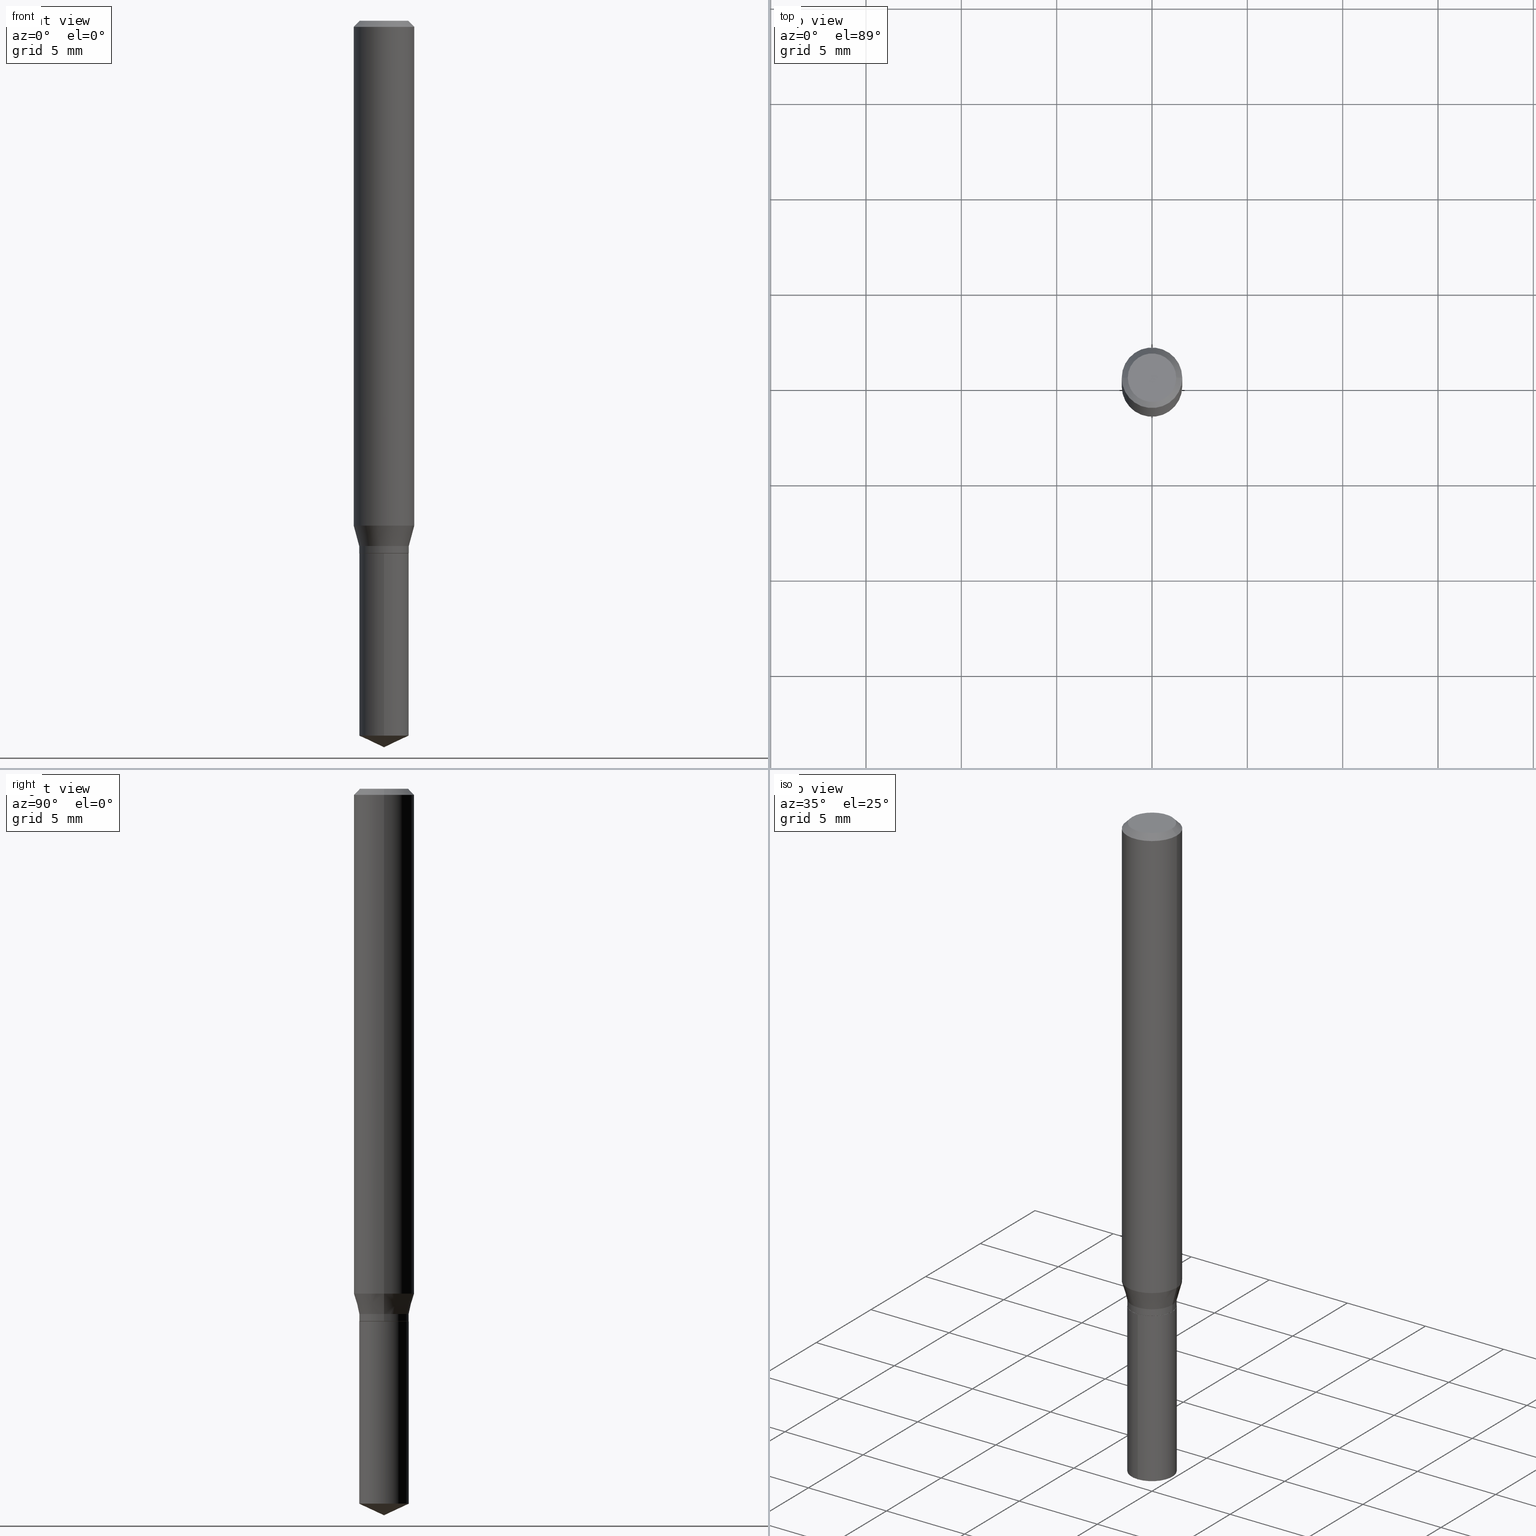
[diagram: canonical four-view strip — front | top / right | iso, engineering-drawing reading convention]
A machine part, canonical four-view strip (front | top / right | iso — engineering-drawing reading convention). The complete STEP part file that produces these views, byte-faithful:
ISO-10303-21;
HEADER;
FILE_DESCRIPTION (( 'STEP AP203' ),
    '1' );
FILE_NAME ('07211.STEP',
    '2024-04-23T20:01:26',
    ( '' ),
    ( '' ),
    'SwSTEP 2.0',
    'SolidWorks 2023',
    '' );
FILE_SCHEMA (( 'CONFIG_CONTROL_DESIGN' ));
ENDSEC;

DATA;
#1 = ORGANIZATION ( 'UNSPECIFIED', 'UNSPECIFIED', '' ) ;
#2 = MANIFOLD_SOLID_BREP ( 'Body-Move/Copy2[2]', #442 ) ;
#3 = DIRECTION ( 'NONE',  ( -2.445468806185136597E-29, 3.491481338843145583E-15, 1.000000000000000000 ) ) ;
#4 = EDGE_CURVE ( 'NONE', #379, #195, #163, .T. ) ;
#5 = VERTEX_POINT ( 'NONE', #465 ) ;
#6 = FACE_OUTER_BOUND ( 'NONE', #115, .T. ) ;
#7 =( CONVERSION_BASED_UNIT ( 'INCH', #227 ) LENGTH_UNIT ( ) NAMED_UNIT ( #392 ) );
#8 = ORIENTED_EDGE ( 'NONE', *, *, #76, .T. ) ;
#9 = CIRCLE ( 'NONE', #384, 0.05070000000000000201 ) ;
#10 = APPLICATION_CONTEXT ( 'configuration controlled 3d designs of mechanical parts and assemblies' ) ;
#11 = EDGE_LOOP ( 'NONE', ( #189, #229, #343, #266 ) ) ;
#12 = ORIENTED_EDGE ( 'NONE', *, *, #327, .F. ) ;
#13 = ORIENTED_EDGE ( 'NONE', *, *, #365, .T. ) ;
#14 = AXIS2_PLACEMENT_3D ( 'NONE', #24, #397, #208 ) ;
#15 = VECTOR ( 'NONE', #417, 39.37007874015748854 ) ;
#16 = ORIENTED_EDGE ( 'NONE', *, *, #184, .F. ) ;
#17 = CYLINDRICAL_SURFACE ( 'NONE', #215, 0.06250000000000006939 ) ;
#18 = DIRECTION ( 'NONE',  ( -2.445468806185136877E-29, 3.491481338843145188E-15, 1.000000000000000000 ) ) ;
#19 = CARTESIAN_POINT ( 'NONE',  ( 0.000000000000000000, 0.000000000000000000, 0.000000000000000000 ) ) ;
#20 = CARTESIAN_POINT ( 'NONE',  ( 0.06250000000000006939, -4.364351673553921624E-16, 3.047610484872463374E-30 ) ) ;
#21 = CARTESIAN_POINT ( 'NONE',  ( 0.000000000000000000, 0.000000000000000000, 0.000000000000000000 ) ) ;
#22 = EDGE_CURVE ( 'NONE', #339, #301, #427, .T. ) ;
#23 = DATE_AND_TIME ( #405, #474 ) ;
#24 = CARTESIAN_POINT ( 'NONE',  ( 2.690015686803650369E-29, -3.840629472727460101E-15, -1.100000000000000089 ) ) ;
#25 = CIRCLE ( 'NONE', #289, 0.04999999999999999584 ) ;
#26 = CIRCLE ( 'NONE', #368, 0.06250000000000000000 ) ;
#27 = CARTESIAN_POINT ( 'NONE',  ( -0.05070000000000000201, -3.477735078522978338E-15, -1.100000000000000089 ) ) ;
#28 = PERSON_AND_ORGANIZATION ( #400, #1 ) ;
#29 = DIRECTION ( 'NONE',  ( -6.982962677686266711E-15, -1.000000000000000000, 3.520397390770453475E-15 ) ) ;
#30 =( GEOMETRIC_REPRESENTATION_CONTEXT ( 3 ) GLOBAL_UNCERTAINTY_ASSIGNED_CONTEXT ( ( #188 ) ) GLOBAL_UNIT_ASSIGNED_CONTEXT ( ( #7, #453, #436 ) ) REPRESENTATION_CONTEXT ( 'NONE', 'WORKASPACE' ) );
#31 = ORIENTED_EDGE ( 'NONE', *, *, #327, .T. ) ;
#32 = SHAPE_DEFINITION_REPRESENTATION ( #157, #459 ) ;
#33 = DIRECTION ( 'NONE',  ( -2.445399690415121530E-29, 3.491580316559632610E-15, 1.000000000000000000 ) ) ;
#34 = CC_DESIGN_PERSON_AND_ORGANIZATION_ASSIGNMENT ( #471, #36, ( #255 ) ) ;
#35 = DIRECTION ( 'NONE',  ( -2.445468806185136597E-29, 3.491481338843145583E-15, 1.000000000000000000 ) ) ;
#36 = PERSON_AND_ORGANIZATION_ROLE ( 'creator' ) ;
#37 = DIRECTION ( 'NONE',  ( -2.445468806185136597E-29, 3.491481338843145583E-15, 1.000000000000000000 ) ) ;
#38 = AXIS2_PLACEMENT_3D ( 'NONE', #107, #338, #380 ) ;
#39 = DIRECTION ( 'NONE',  ( -2.445468806185136597E-29, 3.491481338843145583E-15, 1.000000000000000000 ) ) ;
#40 = DIRECTION ( 'NONE',  ( -2.445468806185136597E-29, 3.491481338843145583E-15, 1.000000000000000000 ) ) ;
#41 = DIRECTION ( 'NONE',  ( -2.445468806185136597E-29, 3.491481338843145583E-15, 1.000000000000000000 ) ) ;
#42 = CARTESIAN_POINT ( 'NONE',  ( 2.688792952400557567E-29, -3.838883732058038598E-15, -1.099499999999999922 ) ) ;
#43 = AXIS2_PLACEMENT_3D ( 'NONE', #435, #243, #401 ) ;
#44 = FACE_OUTER_BOUND ( 'NONE', #90, .T. ) ;
#45 = EDGE_CURVE ( 'NONE', #5, #158, #127, .T. ) ;
#46 = CARTESIAN_POINT ( 'NONE',  ( 0.000000000000000000, 0.000000000000000000, 0.000000000000000000 ) ) ;
#47 = PLANE ( 'NONE',  #179 ) ;
#48 = APPROVAL ( #466, 'UNSPECIFIED' ) ;
#49 = ORIENTED_EDGE ( 'NONE', *, *, #413, .T. ) ;
#50 = FACE_OUTER_BOUND ( 'NONE', #274, .T. ) ;
#51 = ORIENTED_EDGE ( 'NONE', *, *, #307, .T. ) ;
#52 = VECTOR ( 'NONE', #133, 39.37007874015748854 ) ;
#53 = ORIENTED_EDGE ( 'NONE', *, *, #85, .T. ) ;
#54 = CC_DESIGN_APPROVAL ( #48, ( #255 ) ) ;
#55 = ORIENTED_EDGE ( 'NONE', *, *, #187, .T. ) ;
#56 = DIRECTION ( 'NONE',  ( -2.445399690415121810E-29, 3.491580316559632610E-15, 1.000000000000000000 ) ) ;
#57 = DIRECTION ( 'NONE',  ( -2.445468806185136597E-29, 3.491481338843145583E-15, 1.000000000000000000 ) ) ;
#58 = VECTOR ( 'NONE', #71, 39.37007874015748143 ) ;
#59 = VERTEX_POINT ( 'NONE', #246 ) ;
#60 = APPROVAL_DATE_TIME ( #70, #342 ) ;
#61 = FACE_OUTER_BOUND ( 'NONE', #389, .T. ) ;
#62 = CARTESIAN_POINT ( 'NONE',  ( 2.549224730875411366E-29, -3.639617301131549436E-15, -1.042427825874471470 ) ) ;
#63 = SECURITY_CLASSIFICATION_LEVEL ( 'unclassified' ) ;
#64 = CARTESIAN_POINT ( 'NONE',  ( -9.260740279983036507E-28, 1.322265303911854087E-13, 37.87007874015748143 ) ) ;
#65 = DIRECTION ( 'NONE',  ( -2.445468806185136877E-29, 3.491481338843145188E-15, 1.000000000000000000 ) ) ;
#66 = DIRECTION ( 'NONE',  ( 1.000000000000000000, 0.000000000000000000, 0.000000000000000000 ) ) ;
#67 = CARTESIAN_POINT ( 'NONE',  ( 3.893286209682126177E-47, -5.558580879666067980E-33, -1.592040838891559689E-18 ) ) ;
#68 = CIRCLE ( 'NONE', #203, 0.06250000000000000000 ) ;
#69 = CARTESIAN_POINT ( 'NONE',  ( -3.575276890975008567E-16, -0.05120000000000517887, -1.476125047902464127 ) ) ;
#70 = DATE_AND_TIME ( #281, #319 ) ;
#71 = DIRECTION ( 'NONE',  ( -0.7071067811865451302, 2.468850131082231817E-15, -0.7071067811865499042 ) ) ;
#72 = CARTESIAN_POINT ( 'NONE',  ( 3.893286209682126177E-47, -5.558580879666067980E-33, -1.592040838891559689E-18 ) ) ;
#73 = COORDINATED_UNIVERSAL_TIME_OFFSET ( 5, 0, .BEHIND. ) ;
#74 = FACE_OUTER_BOUND ( 'NONE', #265, .T. ) ;
#75 = CARTESIAN_POINT ( 'NONE',  ( 3.668252923656895710E-29, -5.237152723863177100E-15, -1.500000000000000222 ) ) ;
#76 = EDGE_CURVE ( 'NONE', #122, #457, #467, .T. ) ;
#77 = CYLINDRICAL_SURFACE ( 'NONE', #462, 0.05120000000000000939 ) ;
#78 = LINE ( 'NONE', #75, #126 ) ;
#79 = DIRECTION ( 'NONE',  ( 1.000000000000000000, -6.982962677686263555E-15, 0.000000000000000000 ) ) ;
#80 = AXIS2_PLACEMENT_3D ( 'NONE', #399, #441, #139 ) ;
#81 = DIRECTION ( 'NONE',  ( 1.000000000000000000, -6.982962677686263555E-15, 0.000000000000000000 ) ) ;
#82 = EDGE_CURVE ( 'NONE', #457, #84, #450, .T. ) ;
#83 = VERTEX_POINT ( 'NONE', #27 ) ;
#84 = VERTEX_POINT ( 'NONE', #277 ) ;
#85 = EDGE_CURVE ( 'NONE', #59, #5, #284, .T. ) ;
#86 = ORIENTED_EDGE ( 'NONE', *, *, #45, .F. ) ;
#87 = ORIENTED_EDGE ( 'NONE', *, *, #288, .T. ) ;
#88 = ORIENTED_EDGE ( 'NONE', *, *, #130, .F. ) ;
#89 = AXIS2_PLACEMENT_3D ( 'NONE', #334, #120, #79 ) ;
#90 = EDGE_LOOP ( 'NONE', ( #463, #322, #426, #271 ) ) ;
#91 = PERSON_AND_ORGANIZATION ( #400, #1 ) ;
#92 = LOCAL_TIME ( 16, 1, 26.00000000000000000, #312 ) ;
#93 = DIRECTION ( 'NONE',  ( 1.000000000000000000, -6.982962677686263555E-15, 0.000000000000000000 ) ) ;
#94 = EDGE_LOOP ( 'NONE', ( #53, #112, #344, #470 ) ) ;
#95 = COORDINATED_UNIVERSAL_TIME_OFFSET ( 5, 0, .BEHIND. ) ;
#96 = CYLINDRICAL_SURFACE ( 'NONE', #213, 0.06250000000000006939 ) ;
#97 = ORIENTED_EDGE ( 'NONE', *, *, #22, .F. ) ;
#98 = CALENDAR_DATE ( 2024, 23, 4 ) ;
#99 = DIRECTION ( 'NONE',  ( 0.7071067811865451302, -7.319954787623248157E-15, -0.7071067811865499042 ) ) ;
#100 = ORIENTED_EDGE ( 'NONE', *, *, #296, .F. ) ;
#101 = FACE_OUTER_BOUND ( 'NONE', #423, .T. ) ;
#102 = CARTESIAN_POINT ( 'NONE',  ( 3.609791762501709224E-29, -5.153900286548753594E-15, -1.476125047902464349 ) ) ;
#103 = ADVANCED_FACE ( 'NONE', ( #241 ), #167, .T. ) ;
#104 = EDGE_CURVE ( 'NONE', #83, #295, #383, .T. ) ;
#105 = VECTOR ( 'NONE', #183, 39.37007874015748854 ) ;
#106 = DIRECTION ( 'NONE',  ( -2.445468806185136597E-29, 3.491481338843145583E-15, 1.000000000000000000 ) ) ;
#107 = CARTESIAN_POINT ( 'NONE',  ( 2.549224730875411366E-29, -3.639617301131549436E-15, -1.042427825874471470 ) ) ;
#108 = CC_DESIGN_APPROVAL ( #342, ( #370 ) ) ;
#109 = CARTESIAN_POINT ( 'NONE',  ( -0.05070000000000000201, -3.480384305697089145E-15, -1.100000000000000089 ) ) ;
#110 = CC_DESIGN_PERSON_AND_ORGANIZATION_ASSIGNMENT ( #28, #363, ( #218 ) ) ;
#111 = DIRECTION ( 'NONE',  ( 2.438088387897960049E-29, -3.491481338843145188E-15, -1.000000000000000000 ) ) ;
#112 = ORIENTED_EDGE ( 'NONE', *, *, #45, .T. ) ;
#113 = DIRECTION ( 'NONE',  ( -2.445399690415121530E-29, 3.491580316559632610E-15, 1.000000000000000000 ) ) ;
#114 = ORIENTED_EDGE ( 'NONE', *, *, #156, .F. ) ;
#115 = EDGE_LOOP ( 'NONE', ( #420, #422 ) ) ;
#116 = ORIENTED_EDGE ( 'NONE', *, *, #296, .T. ) ;
#117 = AXIS2_PLACEMENT_3D ( 'NONE', #102, #354, #395 ) ;
#118 = PRODUCT ( '07211', '07211', '', ( #433 ) ) ;
#119 = ORIENTED_EDGE ( 'NONE', *, *, #473, .F. ) ;
#120 = DIRECTION ( 'NONE',  ( -2.445468806185136597E-29, 3.491481338843145583E-15, 1.000000000000000000 ) ) ;
#121 = EDGE_LOOP ( 'NONE', ( #300, #181, #49, #341 ) ) ;
#122 = VERTEX_POINT ( 'NONE', #69 ) ;
#123 = APPROVAL_DATE_TIME ( #481, #248 ) ;
#124 = VECTOR ( 'NONE', #99, 39.37007874015748143 ) ;
#125 = CARTESIAN_POINT ( 'NONE',  ( 2.690015686803650369E-29, -3.840629472727460101E-15, -1.100000000000000089 ) ) ;
#126 = VECTOR ( 'NONE', #146, 39.37007874015748854 ) ;
#127 = LINE ( 'NONE', #310, #407 ) ;
#128 = COORDINATED_UNIVERSAL_TIME_OFFSET ( 5, 0, .BEHIND. ) ;
#129 = CARTESIAN_POINT ( 'NONE',  ( 3.637978807092075016E-16, 0.05119999999999486073, -1.476125047902464571 ) ) ;
#130 = EDGE_CURVE ( 'NONE', #195, #301, #374, .T. ) ;
#131 = DIRECTION ( 'NONE',  ( -2.445468806185136877E-29, 3.491481338843145188E-15, 1.000000000000000000 ) ) ;
#132 = COORDINATED_UNIVERSAL_TIME_OFFSET ( 5, 0, .BEHIND. ) ;
#133 = DIRECTION ( 'NONE',  ( -0.2588190451025212391, 5.211531920934549464E-15, 0.9659258262890679791 ) ) ;
#134 = ORIENTED_EDGE ( 'NONE', *, *, #82, .F. ) ;
#135 = PERSON_AND_ORGANIZATION ( #400, #1 ) ;
#136 = AXIS2_PLACEMENT_3D ( 'NONE', #64, #166, #29 ) ;
#137 = FACE_OUTER_BOUND ( 'NONE', #121, .T. ) ;
#138 = EDGE_CURVE ( 'NONE', #336, #315, #483, .T. ) ;
#139 = DIRECTION ( 'NONE',  ( -6.982962677686265133E-15, -1.000000000000000000, 5.335640612625512847E-15 ) ) ;
#140 = APPROVAL_PERSON_ORGANIZATION ( #320, #48, #200 ) ;
#141 = DIRECTION ( 'NONE',  ( -2.445468806185136597E-29, 3.491481338843145583E-15, 1.000000000000000000 ) ) ;
#142 = DIRECTION ( 'NONE',  ( -6.328713451373374901E-15, -0.9063077870366492705, 0.4226182617407009956 ) ) ;
#143 = CARTESIAN_POINT ( 'NONE',  ( 2.690015686803650369E-29, -3.840629472727460101E-15, -1.100000000000000089 ) ) ;
#144 = CARTESIAN_POINT ( 'NONE',  ( 0.05120000000000000939, -4.144388349206813555E-15, -1.084600000000000231 ) ) ;
#145 = ORIENTED_EDGE ( 'NONE', *, *, #421, .F. ) ;
#146 = DIRECTION ( 'NONE',  ( 6.439704144417030353E-15, 0.9063077870366521571, 0.4226182617406946673 ) ) ;
#147 = CIRCLE ( 'NONE', #117, 0.05120000000000000939 ) ;
#148 = ORIENTED_EDGE ( 'NONE', *, *, #431, .T. ) ;
#149 = ADVANCED_FACE ( 'NONE', ( #61 ), #197, .T. ) ;
#150 = ORIENTED_EDGE ( 'NONE', *, *, #288, .F. ) ;
#151 = EDGE_CURVE ( 'NONE', #84, #457, #340, .T. ) ;
#152 = ORIENTED_EDGE ( 'NONE', *, *, #151, .F. ) ;
#153 = ADVANCED_FACE ( 'NONE', ( #74 ), #165, .T. ) ;
#154 = ORIENTED_EDGE ( 'NONE', *, *, #4, .T. ) ;
#155 = AXIS2_PLACEMENT_3D ( 'NONE', #209, #35, #404 ) ;
#156 = EDGE_CURVE ( 'NONE', #122, #231, #251, .T. ) ;
#157 = PRODUCT_DEFINITION_SHAPE ( 'NONE', 'NONE',  #218 ) ;
#158 = VERTEX_POINT ( 'NONE', #472 ) ;
#159 = DIRECTION ( 'NONE',  ( 1.000000000000000000, -6.982962677686266711E-15, 4.876176775795935793E-29 ) ) ;
#160 = CARTESIAN_POINT ( 'NONE',  ( -0.05120000000000000939, 3.637978807091713619E-16, -2.518494766210512278E-30 ) ) ;
#161 = APPLICATION_PROTOCOL_DEFINITION ( 'international standard', 'config_control_design', 1994, #306 ) ;
#162 = FACE_OUTER_BOUND ( 'NONE', #268, .T. ) ;
#163 = LINE ( 'NONE', #192, #475 ) ;
#164 = DATE_AND_TIME ( #402, #92 ) ;
#165 = CONICAL_SURFACE ( 'NONE', #14, 0.05070000000000000201, 0.7853981633974141952 ) ;
#166 = DIRECTION ( 'NONE',  ( -2.445399690415121530E-29, 3.491580316559632610E-15, 1.000000000000000000 ) ) ;
#167 = CYLINDRICAL_SURFACE ( 'NONE', #302, 0.05120000000000000939 ) ;
#168 = DIRECTION ( 'NONE',  ( -6.982962677686265133E-15, -1.000000000000000000, 2.667820306312756424E-15 ) ) ;
#169 = VERTEX_POINT ( 'NONE', #170 ) ;
#170 = CARTESIAN_POINT ( 'NONE',  ( 3.668099535622682715E-29, -5.237370474839449507E-15, -1.500000000000000222 ) ) ;
#171 = DIRECTION ( 'NONE',  ( 1.000000000000000000, -6.982962677686265922E-15, 4.875957971899673662E-29 ) ) ;
#172 = DIRECTION ( 'NONE',  ( -2.445468806185136597E-29, 3.491481338843145583E-15, 1.000000000000000000 ) ) ;
#173 = CIRCLE ( 'NONE', #193, 0.05120000000000000939 ) ;
#174 = AXIS2_PLACEMENT_3D ( 'NONE', #452, #40, #294 ) ;
#175 = FACE_OUTER_BOUND ( 'NONE', #308, .T. ) ;
#176 = CARTESIAN_POINT ( 'NONE',  ( 3.668099535622682155E-29, -5.237370474839448718E-15, -1.500000000000000222 ) ) ;
#177 = FACE_OUTER_BOUND ( 'NONE', #202, .T. ) ;
#178 = CC_DESIGN_PERSON_AND_ORGANIZATION_ASSIGNMENT ( #278, #234, ( #118 ) ) ;
#179 = AXIS2_PLACEMENT_3D ( 'NONE', #375, #449, #260 ) ;
#180 = PLANE ( 'NONE',  #460 ) ;
#181 = ORIENTED_EDGE ( 'NONE', *, *, #104, .T. ) ;
#182 = DIRECTION ( 'NONE',  ( 6.982962677686265922E-15, 1.000000000000000000, -3.491580316559632610E-15 ) ) ;
#183 = DIRECTION ( 'NONE',  ( 0.2588190451025212391, 1.565188264969622362E-15, 0.9659258262890679791 ) ) ;
#184 = EDGE_CURVE ( 'NONE', #315, #393, #430, .T. ) ;
#185 = ORIENTED_EDGE ( 'NONE', *, *, #104, .F. ) ;
#186 = ORIENTED_EDGE ( 'NONE', *, *, #4, .F. ) ;
#187 = EDGE_CURVE ( 'NONE', #301, #5, #276, .T. ) ;
#188 = UNCERTAINTY_MEASURE_WITH_UNIT (LENGTH_MEASURE( 1.000000000000000082E-05 ), #7, 'distance_accuracy_value', 'NONE');
#189 = ORIENTED_EDGE ( 'NONE', *, *, #226, .F. ) ;
#190 = ORIENTED_EDGE ( 'NONE', *, *, #335, .T. ) ;
#191 = CONICAL_SURFACE ( 'NONE', #261, 0.06250000000000000000, 0.7853981633974449483 ) ;
#192 = CARTESIAN_POINT ( 'NONE',  ( 0.05120000000000000939, -3.575276890975369471E-16, 2.496602509207519384E-30 ) ) ;
#193 = AXIS2_PLACEMENT_3D ( 'NONE', #287, #141, #410 ) ;
#194 = CIRCLE ( 'NONE', #89, 0.05120000000000000939 ) ;
#195 = VERTEX_POINT ( 'NONE', #482 ) ;
#196 = APPROVAL_DATE_TIME ( #164, #48 ) ;
#197 = CYLINDRICAL_SURFACE ( 'NONE', #223, 0.05120000000000000939 ) ;
#198 = ORIENTED_EDGE ( 'NONE', *, *, #291, .F. ) ;
#199 = ADVANCED_FACE ( 'NONE', ( #137 ), #314, .T. ) ;
#200 = APPROVAL_ROLE ( '' ) ;
#201 = DIRECTION ( 'NONE',  ( -1.000000000000000000, 6.982962677686266711E-15, 0.000000000000000000 ) ) ;
#202 = EDGE_LOOP ( 'NONE', ( #270, #454 ) ) ;
#203 = AXIS2_PLACEMENT_3D ( 'NONE', #286, #37, #211 ) ;
#204 = DIRECTION ( 'NONE',  ( -1.000000000000000000, 6.982962677686266711E-15, 0.000000000000000000 ) ) ;
#205 = ORIENTED_EDGE ( 'NONE', *, *, #236, .F. ) ;
#206 = PERSON_AND_ORGANIZATION ( #400, #1 ) ;
#207 = APPROVAL_PERSON_ORGANIZATION ( #206, #342, #394 ) ;
#208 = DIRECTION ( 'NONE',  ( 1.000000000000000000, -6.982962677686263555E-15, 0.000000000000000000 ) ) ;
#209 = CARTESIAN_POINT ( 'NONE',  ( 2.652355467188399594E-29, -3.786860660109276214E-15, -1.084600000000000231 ) ) ;
#210 = DATE_TIME_ROLE ( 'creation_date' ) ;
#211 = DIRECTION ( 'NONE',  ( 1.000000000000000000, -6.982962677686266711E-15, 0.000000000000000000 ) ) ;
#212 = PRODUCT_RELATED_PRODUCT_CATEGORY ( 'detail', '', ( #118 ) ) ;
#213 = AXIS2_PLACEMENT_3D ( 'NONE', #313, #469, #242 ) ;
#214 = LINE ( 'NONE', #220, #15 ) ;
#215 = AXIS2_PLACEMENT_3D ( 'NONE', #46, #57, #159 ) ;
#216 = CARTESIAN_POINT ( 'NONE',  ( 2.690015686803650369E-29, -3.840629472727460101E-15, -1.100000000000000089 ) ) ;
#217 = LOCAL_TIME ( 16, 1, 26.00000000000000000, #128 ) ;
#218 = PRODUCT_DEFINITION ( 'UNKNOWN', '', #255, #458 ) ;
#219 = CARTESIAN_POINT ( 'NONE',  ( -0.04999999999999999584, 3.709698922520826725E-16, -1.592040838894077649E-18 ) ) ;
#220 = CARTESIAN_POINT ( 'NONE',  ( 0.05070000000000000201, -4.194665680486153647E-15, -1.100000000000000089 ) ) ;
#221 = CARTESIAN_POINT ( 'NONE',  ( 1.946643104841063088E-47, -2.779290439833033990E-33, -7.960204194457798443E-19 ) ) ;
#222 = AXIS2_PLACEMENT_3D ( 'NONE', #237, #347, #396 ) ;
#223 = AXIS2_PLACEMENT_3D ( 'NONE', #125, #317, #321 ) ;
#224 = AXIS2_PLACEMENT_3D ( 'NONE', #42, #3, #258 ) ;
#225 = CARTESIAN_POINT ( 'NONE',  ( 0.000000000000000000, 0.000000000000000000, 0.000000000000000000 ) ) ;
#226 = EDGE_CURVE ( 'NONE', #315, #336, #25, .T. ) ;
#227 = LENGTH_MEASURE_WITH_UNIT ( LENGTH_MEASURE( 0.02539999999999999897 ), #262 );
#228 = EDGE_LOOP ( 'NONE', ( #31, #456, #88, #186 ) ) ;
#229 = ORIENTED_EDGE ( 'NONE', *, *, #184, .T. ) ;
#230 = AXIS2_PLACEMENT_3D ( 'NONE', #282, #285, #93 ) ;
#231 = VERTEX_POINT ( 'NONE', #129 ) ;
#232 = CONICAL_SURFACE ( 'NONE', #415, 0.06250000000000000000, 0.7853981633974449483 ) ;
#233 = ORIENTED_EDGE ( 'NONE', *, *, #461, .T. ) ;
#234 = PERSON_AND_ORGANIZATION_ROLE ( 'design_owner' ) ;
#235 = AXIS2_PLACEMENT_3D ( 'NONE', #331, #487, #372 ) ;
#236 = EDGE_CURVE ( 'NONE', #158, #393, #68, .T. ) ;
#237 = CARTESIAN_POINT ( 'NONE',  ( 2.690015686803650369E-29, -3.840629472727460101E-15, -1.100000000000000089 ) ) ;
#238 = CC_DESIGN_APPROVAL ( #248, ( #218 ) ) ;
#239 = FACE_OUTER_BOUND ( 'NONE', #303, .T. ) ;
#240 = ADVANCED_FACE ( 'NONE', ( #239 ), #488, .T. ) ;
#241 = FACE_OUTER_BOUND ( 'NONE', #228, .T. ) ;
#242 = DIRECTION ( 'NONE',  ( 1.000000000000000000, -6.982962677686266711E-15, 4.876176775795935793E-29 ) ) ;
#243 = DIRECTION ( 'NONE',  ( -2.445468806185136597E-29, 3.491481338843145583E-15, 1.000000000000000000 ) ) ;
#244 = ADVANCED_FACE ( 'NONE', ( #352 ), #232, .T. ) ;
#245 = DIRECTION ( 'NONE',  ( 2.445468806185136597E-29, -3.491481338843145583E-15, -1.000000000000000000 ) ) ;
#246 = CARTESIAN_POINT ( 'NONE',  ( 0.06250000000000012490, -4.076052468486941894E-15, -1.042427825874471470 ) ) ;
#247 = APPROVAL_STATUS ( 'not_yet_approved' ) ;
#248 = APPROVAL ( #247, 'UNSPECIFIED' ) ;
#249 = CARTESIAN_POINT ( 'NONE',  ( 3.056836007731442729E-31, -4.364351673553962300E-17, -0.01250000000000008916 ) ) ;
#250 = FACE_OUTER_BOUND ( 'NONE', #359, .T. ) ;
#251 = CIRCLE ( 'NONE', #80, 0.05120000000000000939 ) ;
#252 = LINE ( 'NONE', #176, #325 ) ;
#253 = CC_DESIGN_PERSON_AND_ORGANIZATION_ASSIGNMENT ( #91, #309, ( #255 ) ) ;
#254 = CARTESIAN_POINT ( 'NONE',  ( 0.05120000000000000939, -4.196411421155575151E-15, -1.099499999999999922 ) ) ;
#255 = PRODUCT_DEFINITION_FORMATION_WITH_SPECIFIED_SOURCE ( 'ANY', '', #118, .NOT_KNOWN. ) ;
#256 = CYLINDRICAL_SURFACE ( 'NONE', #304, 0.05120000000000000939 ) ;
#257 = CARTESIAN_POINT ( 'NONE',  ( 0.04999999999999999584, -4.077247707424184705E-16, -1.592040838888913461E-18 ) ) ;
#258 = DIRECTION ( 'NONE',  ( 1.000000000000000000, -6.982962677686263555E-15, 0.000000000000000000 ) ) ;
#259 = EDGE_CURVE ( 'NONE', #336, #158, #364, .T. ) ;
#260 = DIRECTION ( 'NONE',  ( 1.000000000000000000, -6.982962677686265922E-15, 4.876176775795935793E-29 ) ) ;
#261 = AXIS2_PLACEMENT_3D ( 'NONE', #249, #279, #201 ) ;
#262 =( LENGTH_UNIT ( ) NAMED_UNIT ( * ) SI_UNIT ( $, .METRE. ) );
#263 = VECTOR ( 'NONE', #367, 39.37007874015748854 ) ;
#264 = ORIENTED_EDGE ( 'NONE', *, *, #156, .T. ) ;
#265 = EDGE_LOOP ( 'NONE', ( #51, #190, #12, #418 ) ) ;
#266 = ORIENTED_EDGE ( 'NONE', *, *, #259, .F. ) ;
#267 = ADVANCED_FACE ( 'NONE', ( #101 ), #191, .T. ) ;
#268 = EDGE_LOOP ( 'NONE', ( #86, #148, #398, #205 ) ) ;
#269 = AXIS2_PLACEMENT_3D ( 'NONE', #486, #39, #81 ) ;
#270 = ORIENTED_EDGE ( 'NONE', *, *, #82, .T. ) ;
#271 = ORIENTED_EDGE ( 'NONE', *, *, #431, .F. ) ;
#272 = EDGE_CURVE ( 'NONE', #59, #393, #406, .T. ) ;
#273 = DATE_TIME_ROLE ( 'classification_date' ) ;
#274 = EDGE_LOOP ( 'NONE', ( #264, #87, #134, #350 ) ) ;
#275 = DATE_AND_TIME ( #98, #217 ) ;
#276 = LINE ( 'NONE', #324, #52 ) ;
#277 = CARTESIAN_POINT ( 'NONE',  ( 3.637978807092074523E-16, 0.05119999999999616525, -1.100000000000000089 ) ) ;
#278 = PERSON_AND_ORGANIZATION ( #400, #1 ) ;
#279 = DIRECTION ( 'NONE',  ( 2.445468806185136597E-29, -3.491481338843145583E-15, -1.000000000000000000 ) ) ;
#280 = DIRECTION ( 'NONE',  ( 1.000000000000000000, -6.982962677686264344E-15, 0.000000000000000000 ) ) ;
#281 = CALENDAR_DATE ( 2024, 23, 4 ) ;
#282 = CARTESIAN_POINT ( 'NONE',  ( 2.690015686803650369E-29, -3.840629472727460101E-15, -1.100000000000000089 ) ) ;
#283 = ORIENTED_EDGE ( 'NONE', *, *, #291, .T. ) ;
#284 = CIRCLE ( 'NONE', #445, 0.06250000000000012490 ) ;
#285 = DIRECTION ( 'NONE',  ( -2.445468806185136597E-29, 3.491481338843145583E-15, 1.000000000000000000 ) ) ;
#286 = CARTESIAN_POINT ( 'NONE',  ( 3.056836007731442729E-31, -4.364351673553962300E-17, -0.01250000000000008916 ) ) ;
#287 = CARTESIAN_POINT ( 'NONE',  ( 2.688792952400557567E-29, -3.838883732058038598E-15, -1.099499999999999922 ) ) ;
#288 = EDGE_CURVE ( 'NONE', #231, #84, #485, .T. ) ;
#289 = AXIS2_PLACEMENT_3D ( 'NONE', #67, #172, #403 ) ;
#290 = DIRECTION ( 'NONE',  ( -2.445468806185136597E-29, 3.491481338843145583E-15, 1.000000000000000000 ) ) ;
#291 = EDGE_CURVE ( 'NONE', #231, #122, #147, .T. ) ;
#292 = CARTESIAN_POINT ( 'NONE',  ( 0.06250000000000000000, -4.800786840909313294E-16, -0.01250000000000008916 ) ) ;
#293 = ADVANCED_FACE ( 'NONE', ( #162 ), #96, .T. ) ;
#294 = DIRECTION ( 'NONE',  ( 1.000000000000000000, -6.982962677686263555E-15, 0.000000000000000000 ) ) ;
#295 = VERTEX_POINT ( 'NONE', #446 ) ;
#296 = EDGE_CURVE ( 'NONE', #169, #122, #252, .T. ) ;
#297 = FACE_OUTER_BOUND ( 'NONE', #386, .T. ) ;
#298 = AXIS2_PLACEMENT_3D ( 'NONE', #143, #377, #182 ) ;
#299 = ORIENTED_EDGE ( 'NONE', *, *, #236, .T. ) ;
#300 = ORIENTED_EDGE ( 'NONE', *, *, #335, .F. ) ;
#301 = VERTEX_POINT ( 'NONE', #447 ) ;
#302 = AXIS2_PLACEMENT_3D ( 'NONE', #21, #432, #318 ) ;
#303 = EDGE_LOOP ( 'NONE', ( #100, #13, #114 ) ) ;
#304 = AXIS2_PLACEMENT_3D ( 'NONE', #373, #113, #464 ) ;
#305 = MANIFOLD_SOLID_BREP ( 'Body-Move/Copy2[1]', #424 ) ;
#306 = APPLICATION_CONTEXT ( 'configuration controlled 3d designs of mechanical parts and assemblies' ) ;
#307 = EDGE_CURVE ( 'NONE', #295, #83, #9, .T. ) ;
#308 = EDGE_LOOP ( 'NONE', ( #382, #116, #198 ) ) ;
#309 = PERSON_AND_ORGANIZATION_ROLE ( 'design_supplier' ) ;
#310 = CARTESIAN_POINT ( 'NONE',  ( -0.06250000000000006939, 4.440892098500631092E-16, -3.074334431409319267E-30 ) ) ;
#311 = CC_DESIGN_DATE_AND_TIME_ASSIGNMENT ( #275, #273, ( #370 ) ) ;
#312 = COORDINATED_UNIVERSAL_TIME_OFFSET ( 5, 0, .BEHIND. ) ;
#313 = CARTESIAN_POINT ( 'NONE',  ( 0.000000000000000000, 0.000000000000000000, 0.000000000000000000 ) ) ;
#314 = CONICAL_SURFACE ( 'NONE', #230, 0.05070000000000000201, 0.7853981633974141952 ) ;
#315 = VERTEX_POINT ( 'NONE', #257 ) ;
#316 = APPLICATION_PROTOCOL_DEFINITION ( 'international standard', 'config_control_design', 1994, #10 ) ;
#317 = DIRECTION ( 'NONE',  ( -2.445399690415121530E-29, 3.491580316559632610E-15, 1.000000000000000000 ) ) ;
#318 = DIRECTION ( 'NONE',  ( 1.000000000000000000, -6.982962677686267499E-15, 4.876176775795935232E-29 ) ) ;
#319 = LOCAL_TIME ( 16, 1, 26.00000000000000000, #132 ) ;
#320 = PERSON_AND_ORGANIZATION ( #400, #1 ) ;
#321 = DIRECTION ( 'NONE',  ( -6.982962677686265133E-15, -1.000000000000000000, 2.667820306312756424E-15 ) ) ;
#322 = ORIENTED_EDGE ( 'NONE', *, *, #473, .T. ) ;
#323 = CALENDAR_DATE ( 2024, 23, 4 ) ;
#324 = CARTESIAN_POINT ( 'NONE',  ( -0.05120000000000000939, -3.423062779400105148E-15, -1.084600000000000231 ) ) ;
#325 = VECTOR ( 'NONE', #142, 39.37007874015748143 ) ;
#326 = CARTESIAN_POINT ( 'NONE',  ( -0.06250000000000000000, 3.927916506198520587E-16, -0.01250000000000008916 ) ) ;
#327 = EDGE_CURVE ( 'NONE', #379, #339, #173, .T. ) ;
#328 = EDGE_CURVE ( 'NONE', #393, #158, #26, .T. ) ;
#329 = CARTESIAN_POINT ( 'NONE',  ( -0.05120000000000000939, -3.449074315374485945E-15, -1.099499999999999922 ) ) ;
#330 = ADVANCED_FACE ( 'NONE', ( #412 ), #77, .T. ) ;
#331 = CARTESIAN_POINT ( 'NONE',  ( -9.260740279983036507E-28, 1.322265303911854087E-13, 37.87007874015748143 ) ) ;
#332 = VECTOR ( 'NONE', #434, 39.37007874015748143 ) ;
#333 = PLANE ( 'NONE',  #298 ) ;
#334 = CARTESIAN_POINT ( 'NONE',  ( 2.652355467188399594E-29, -3.786860660109276214E-15, -1.084600000000000231 ) ) ;
#335 = EDGE_CURVE ( 'NONE', #83, #339, #371, .T. ) ;
#336 = VERTEX_POINT ( 'NONE', #219 ) ;
#337 = DIRECTION ( 'NONE',  ( -1.000000000000000000, 6.982962677686265922E-15, -4.876176775795935793E-29 ) ) ;
#338 = DIRECTION ( 'NONE',  ( -2.445468806185136597E-29, 3.491481338843145583E-15, 1.000000000000000000 ) ) ;
#339 = VERTEX_POINT ( 'NONE', #329 ) ;
#340 = CIRCLE ( 'NONE', #438, 0.05120000000000000939 ) ;
#341 = ORIENTED_EDGE ( 'NONE', *, *, #461, .F. ) ;
#342 = APPROVAL ( #478, 'UNSPECIFIED' ) ;
#343 = ORIENTED_EDGE ( 'NONE', *, *, #328, .T. ) ;
#344 = ORIENTED_EDGE ( 'NONE', *, *, #328, .F. ) ;
#345 = ADVANCED_FACE ( 'NONE', ( #297 ), #348, .T. ) ;
#346 = VECTOR ( 'NONE', #357, 39.37007874015748143 ) ;
#347 = DIRECTION ( 'NONE',  ( -2.445399690415121530E-29, 3.491580316559632610E-15, 1.000000000000000000 ) ) ;
#348 = CONICAL_SURFACE ( 'NONE', #174, 0.05120000000000000939, 0.2617993877991499629 ) ;
#349 = LINE ( 'NONE', #144, #105 ) ;
#350 = ORIENTED_EDGE ( 'NONE', *, *, #76, .F. ) ;
#351 = APPROVAL_ROLE ( '' ) ;
#352 = FACE_OUTER_BOUND ( 'NONE', #11, .T. ) ;
#353 = DIRECTION ( 'NONE',  ( -2.445468806185136597E-29, 3.491481338843145583E-15, 1.000000000000000000 ) ) ;
#354 = DIRECTION ( 'NONE',  ( -2.445399690415121530E-29, 3.491580316559632610E-15, 1.000000000000000000 ) ) ;
#355 = CARTESIAN_POINT ( 'NONE',  ( -3.575276890975099779E-16, -0.05120000000000384660, -1.099999999999999867 ) ) ;
#356 = ADVANCED_FACE ( 'NONE', ( #250 ), #47, .F. ) ;
#357 = DIRECTION ( 'NONE',  ( -2.445468806185136877E-29, 3.491481338843145188E-15, 1.000000000000000000 ) ) ;
#358 = CONICAL_SURFACE ( 'NONE', #269, 0.05120000000000000939, 0.2617993877991499629 ) ;
#359 = EDGE_LOOP ( 'NONE', ( #391, #185 ) ) ;
#360 = PERSON_AND_ORGANIZATION ( #400, #1 ) ;
#361 = CARTESIAN_POINT ( 'NONE',  ( 3.056836007731442729E-31, -4.364351673553962300E-17, -0.01250000000000008916 ) ) ;
#362 = DIRECTION ( 'NONE',  ( -2.445468806185136597E-29, 3.491481338843145583E-15, 1.000000000000000000 ) ) ;
#363 = PERSON_AND_ORGANIZATION_ROLE ( 'creator' ) ;
#364 = LINE ( 'NONE', #326, #58 ) ;
#365 = EDGE_CURVE ( 'NONE', #169, #231, #78, .T. ) ;
#366 = AXIS2_PLACEMENT_3D ( 'NONE', #72, #362, #171 ) ;
#367 = DIRECTION ( 'NONE',  ( -0.7071067811865232589, 7.493145998870265808E-15, 0.7071067811865715536 ) ) ;
#368 = AXIS2_PLACEMENT_3D ( 'NONE', #416, #106, #408 ) ;
#369 = ADVANCED_FACE ( 'NONE', ( #175 ), #385, .T. ) ;
#370 = SECURITY_CLASSIFICATION ( '', '', #63 ) ;
#371 = LINE ( 'NONE', #109, #263 ) ;
#372 = DIRECTION ( 'NONE',  ( -6.982962677686266711E-15, -1.000000000000000000, 3.520397390770453475E-15 ) ) ;
#373 = CARTESIAN_POINT ( 'NONE',  ( 2.690015686803650369E-29, -3.840629472727460101E-15, -1.100000000000000089 ) ) ;
#374 = CIRCLE ( 'NONE', #155, 0.05120000000000000939 ) ;
#375 = CARTESIAN_POINT ( 'NONE',  ( 2.690015686803650369E-29, -3.840629472727460101E-15, -1.100000000000000089 ) ) ;
#376 = CIRCLE ( 'NONE', #224, 0.05120000000000000939 ) ;
#377 = DIRECTION ( 'NONE',  ( 2.445399690415121250E-29, -3.491580316559632610E-15, -1.000000000000000000 ) ) ;
#378 = FACE_OUTER_BOUND ( 'NONE', #94, .T. ) ;
#379 = VERTEX_POINT ( 'NONE', #254 ) ;
#380 = DIRECTION ( 'NONE',  ( 1.000000000000000000, -6.982962677686264344E-15, 0.000000000000000000 ) ) ;
#381 = ADVANCED_FACE ( 'NONE', ( #44 ), #358, .T. ) ;
#382 = ORIENTED_EDGE ( 'NONE', *, *, #365, .F. ) ;
#383 = CIRCLE ( 'NONE', #43, 0.05070000000000000201 ) ;
#384 = AXIS2_PLACEMENT_3D ( 'NONE', #216, #41, #414 ) ;
#385 = CONICAL_SURFACE ( 'NONE', #235, 84.42940631927434936, 1.134464013796316006 ) ;
#386 = EDGE_LOOP ( 'NONE', ( #429, #55, #451, #145 ) ) ;
#387 = ADVANCED_FACE ( 'NONE', ( #177 ), #333, .F. ) ;
#388 = CC_DESIGN_SECURITY_CLASSIFICATION ( #370, ( #255 ) ) ;
#389 = EDGE_LOOP ( 'NONE', ( #150, #283, #8, #152 ) ) ;
#390 = VECTOR ( 'NONE', #56, 39.37007874015748143 ) ;
#391 = ORIENTED_EDGE ( 'NONE', *, *, #307, .F. ) ;
#392 = DIMENSIONAL_EXPONENTS ( 1.000000000000000000, 0.000000000000000000, 0.000000000000000000, 0.000000000000000000, 0.000000000000000000, 0.000000000000000000, 0.000000000000000000 ) ;
#393 = VERTEX_POINT ( 'NONE', #292 ) ;
#394 = APPROVAL_ROLE ( '' ) ;
#395 = DIRECTION ( 'NONE',  ( -6.982962677686265133E-15, -1.000000000000000000, 5.335640612625512847E-15 ) ) ;
#396 = DIRECTION ( 'NONE',  ( -6.982962677686265133E-15, -1.000000000000000000, 2.667820306312756424E-15 ) ) ;
#397 = DIRECTION ( 'NONE',  ( -2.445468806185136597E-29, 3.491481338843145583E-15, 1.000000000000000000 ) ) ;
#398 = ORIENTED_EDGE ( 'NONE', *, *, #272, .T. ) ;
#399 = CARTESIAN_POINT ( 'NONE',  ( 3.609791762501709224E-29, -5.153900286548753594E-15, -1.476125047902464349 ) ) ;
#400 = PERSON ( 'UNSPECIFIED', 'UNSPECIFIED', 'UNSPECIFIED', ('UNSPECIFIED'), ('UNSPECIFIED'), ('UNSPECIFIED') ) ;
#401 = DIRECTION ( 'NONE',  ( 1.000000000000000000, -6.982962677686263555E-15, 0.000000000000000000 ) ) ;
#402 = CALENDAR_DATE ( 2024, 23, 4 ) ;
#403 = DIRECTION ( 'NONE',  ( 1.000000000000000000, -6.982962677686265922E-15, 4.875957971899673662E-29 ) ) ;
#404 = DIRECTION ( 'NONE',  ( 1.000000000000000000, -6.982962677686263555E-15, 0.000000000000000000 ) ) ;
#405 = CALENDAR_DATE ( 2024, 23, 4 ) ;
#406 = LINE ( 'NONE', #20, #346 ) ;
#407 = VECTOR ( 'NONE', #131, 39.37007874015748143 ) ;
#408 = DIRECTION ( 'NONE',  ( 1.000000000000000000, -6.982962677686266711E-15, 0.000000000000000000 ) ) ;
#409 = ADVANCED_FACE ( 'NONE', ( #6 ), #180, .F. ) ;
#410 = DIRECTION ( 'NONE',  ( 1.000000000000000000, -6.982962677686263555E-15, 0.000000000000000000 ) ) ;
#411 = AXIS2_PLACEMENT_3D ( 'NONE', #19, #428, #66 ) ;
#412 = FACE_OUTER_BOUND ( 'NONE', #480, .T. ) ;
#413 = EDGE_CURVE ( 'NONE', #295, #379, #214, .T. ) ;
#414 = DIRECTION ( 'NONE',  ( 1.000000000000000000, -6.982962677686263555E-15, 0.000000000000000000 ) ) ;
#415 = AXIS2_PLACEMENT_3D ( 'NONE', #361, #245, #204 ) ;
#416 = CARTESIAN_POINT ( 'NONE',  ( 3.056836007731442729E-31, -4.364351673553962300E-17, -0.01250000000000008916 ) ) ;
#417 = DIRECTION ( 'NONE',  ( 0.7071067811865232589, -2.468850131082003836E-15, 0.7071067811865715536 ) ) ;
#418 = ORIENTED_EDGE ( 'NONE', *, *, #413, .F. ) ;
#419 = ADVANCED_FACE ( 'NONE', ( #378 ), #17, .T. ) ;
#420 = ORIENTED_EDGE ( 'NONE', *, *, #138, .T. ) ;
#421 = EDGE_CURVE ( 'NONE', #195, #59, #349, .T. ) ;
#422 = ORIENTED_EDGE ( 'NONE', *, *, #226, .T. ) ;
#423 = EDGE_LOOP ( 'NONE', ( #16, #476, #439, #299 ) ) ;
#424 = CLOSED_SHELL ( 'NONE', ( #440, #240, #369, #149, #387 ) ) ;
#425 = APPROVAL_PERSON_ORGANIZATION ( #135, #248, #351 ) ;
#426 = ORIENTED_EDGE ( 'NONE', *, *, #421, .T. ) ;
#427 = LINE ( 'NONE', #160, #477 ) ;
#428 = DIRECTION ( 'NONE',  ( 0.000000000000000000, 0.000000000000000000, 1.000000000000000000 ) ) ;
#429 = ORIENTED_EDGE ( 'NONE', *, *, #130, .T. ) ;
#430 = LINE ( 'NONE', #479, #124 ) ;
#431 = EDGE_CURVE ( 'NONE', #5, #59, #490, .T. ) ;
#432 = DIRECTION ( 'NONE',  ( -2.445468806185136597E-29, 3.491481338843145583E-15, 1.000000000000000000 ) ) ;
#433 = MECHANICAL_CONTEXT ( 'NONE', #306, 'mechanical' ) ;
#434 = DIRECTION ( 'NONE',  ( -2.445399690415121810E-29, 3.491580316559632610E-15, 1.000000000000000000 ) ) ;
#435 = CARTESIAN_POINT ( 'NONE',  ( 2.690015686803650369E-29, -3.840629472727460101E-15, -1.100000000000000089 ) ) ;
#436 =( NAMED_UNIT ( * ) SI_UNIT ( $, .STERADIAN. ) SOLID_ANGLE_UNIT ( ) );
#437 = CARTESIAN_POINT ( 'NONE',  ( 2.690015686803650369E-29, -3.840629472727460101E-15, -1.100000000000000089 ) ) ;
#438 = AXIS2_PLACEMENT_3D ( 'NONE', #437, #33, #168 ) ;
#439 = ORIENTED_EDGE ( 'NONE', *, *, #259, .T. ) ;
#440 = ADVANCED_FACE ( 'NONE', ( #50 ), #256, .T. ) ;
#441 = DIRECTION ( 'NONE',  ( -2.445399690415121530E-29, 3.491580316559632610E-15, 1.000000000000000000 ) ) ;
#442 = CLOSED_SHELL ( 'NONE', ( #153, #244, #419, #345, #103, #330, #381, #293, #267, #409, #356, #199 ) ) ;
#443 = CC_DESIGN_DATE_AND_TIME_ASSIGNMENT ( #23, #210, ( #218 ) ) ;
#444 = CARTESIAN_POINT ( 'NONE',  ( 3.637978807091981339E-16, 0.05119999999999616525, -1.100000000000000089 ) ) ;
#445 = AXIS2_PLACEMENT_3D ( 'NONE', #62, #353, #280 ) ;
#446 = CARTESIAN_POINT ( 'NONE',  ( 0.05070000000000000201, -4.194665680486153647E-15, -1.100000000000000089 ) ) ;
#447 = CARTESIAN_POINT ( 'NONE',  ( -0.05120000000000000939, -3.449074315374485945E-15, -1.084600000000000231 ) ) ;
#448 = CARTESIAN_POINT ( 'NONE',  ( -3.575276890975099779E-16, -0.05120000000000384660, -1.099999999999999867 ) ) ;
#449 = DIRECTION ( 'NONE',  ( -2.438088387897960049E-29, 3.491481338843145188E-15, 1.000000000000000000 ) ) ;
#450 = CIRCLE ( 'NONE', #222, 0.05120000000000000939 ) ;
#451 = ORIENTED_EDGE ( 'NONE', *, *, #85, .F. ) ;
#452 = CARTESIAN_POINT ( 'NONE',  ( 2.652355467188399594E-29, -3.786860660109276214E-15, -1.084600000000000231 ) ) ;
#453 =( NAMED_UNIT ( * ) PLANE_ANGLE_UNIT ( ) SI_UNIT ( $, .RADIAN. ) );
#454 = ORIENTED_EDGE ( 'NONE', *, *, #151, .T. ) ;
#455 = LOCAL_TIME ( 16, 1, 26.00000000000000000, #95 ) ;
#456 = ORIENTED_EDGE ( 'NONE', *, *, #22, .T. ) ;
#457 = VERTEX_POINT ( 'NONE', #448 ) ;
#458 = DESIGN_CONTEXT ( 'detailed design', #10, 'design' ) ;
#459 = ADVANCED_BREP_SHAPE_REPRESENTATION ( '07211', ( #305, #2, #411 ), #30 ) ;
#460 = AXIS2_PLACEMENT_3D ( 'NONE', #221, #111, #337 ) ;
#461 = EDGE_CURVE ( 'NONE', #339, #379, #376, .T. ) ;
#462 = AXIS2_PLACEMENT_3D ( 'NONE', #225, #290, #489 ) ;
#463 = ORIENTED_EDGE ( 'NONE', *, *, #187, .F. ) ;
#464 = DIRECTION ( 'NONE',  ( -6.982962677686265133E-15, -1.000000000000000000, 2.667820306312756424E-15 ) ) ;
#465 = CARTESIAN_POINT ( 'NONE',  ( -0.06250000000000012490, -3.195528091281486031E-15, -1.042427825874471470 ) ) ;
#466 = APPROVAL_STATUS ( 'not_yet_approved' ) ;
#467 = LINE ( 'NONE', #355, #390 ) ;
#468 = PERSON_AND_ORGANIZATION_ROLE ( 'classification_officer' ) ;
#469 = DIRECTION ( 'NONE',  ( -2.445468806185136597E-29, 3.491481338843145583E-15, 1.000000000000000000 ) ) ;
#470 = ORIENTED_EDGE ( 'NONE', *, *, #272, .F. ) ;
#471 = PERSON_AND_ORGANIZATION ( #400, #1 ) ;
#472 = CARTESIAN_POINT ( 'NONE',  ( -0.06250000000000000000, -1.397541199083480699E-15, -0.01250000000000008916 ) ) ;
#473 = EDGE_CURVE ( 'NONE', #301, #195, #194, .T. ) ;
#474 = LOCAL_TIME ( 16, 1, 26.00000000000000000, #73 ) ;
#475 = VECTOR ( 'NONE', #18, 39.37007874015748143 ) ;
#476 = ORIENTED_EDGE ( 'NONE', *, *, #138, .F. ) ;
#477 = VECTOR ( 'NONE', #65, 39.37007874015748143 ) ;
#478 = APPROVAL_STATUS ( 'not_yet_approved' ) ;
#479 = CARTESIAN_POINT ( 'NONE',  ( 0.06250000000000000000, -4.724246415962603826E-16, -0.01250000000000008916 ) ) ;
#480 = EDGE_LOOP ( 'NONE', ( #97, #233, #154, #119 ) ) ;
#481 = DATE_AND_TIME ( #323, #455 ) ;
#482 = CARTESIAN_POINT ( 'NONE',  ( 0.05120000000000000939, -4.144388349206813555E-15, -1.084600000000000231 ) ) ;
#483 = CIRCLE ( 'NONE', #366, 0.04999999999999999584 ) ;
#484 = CC_DESIGN_PERSON_AND_ORGANIZATION_ASSIGNMENT ( #360, #468, ( #370 ) ) ;
#485 = LINE ( 'NONE', #444, #332 ) ;
#486 = CARTESIAN_POINT ( 'NONE',  ( 2.652355467188399594E-29, -3.786860660109276214E-15, -1.084600000000000231 ) ) ;
#487 = DIRECTION ( 'NONE',  ( -2.445399690415121530E-29, 3.491580316559632610E-15, 1.000000000000000000 ) ) ;
#488 = CONICAL_SURFACE ( 'NONE', #136, 84.42940631927434936, 1.134464013796316006 ) ;
#489 = DIRECTION ( 'NONE',  ( 1.000000000000000000, -6.982962677686267499E-15, 4.876176775795935232E-29 ) ) ;
#490 = CIRCLE ( 'NONE', #38, 0.06250000000000012490 ) ;
ENDSEC;
END-ISO-10303-21;
